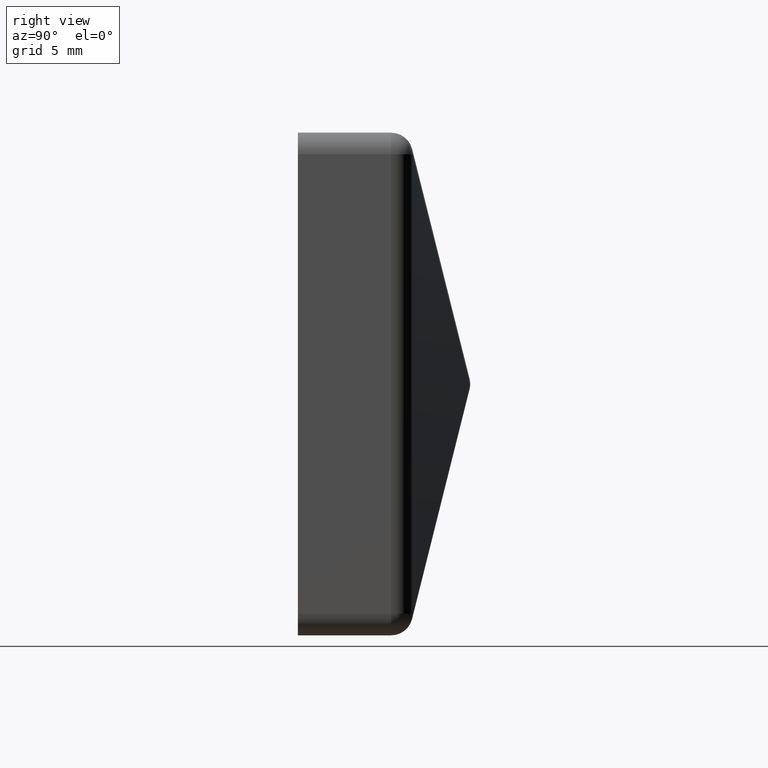
[diagram: clean part render]
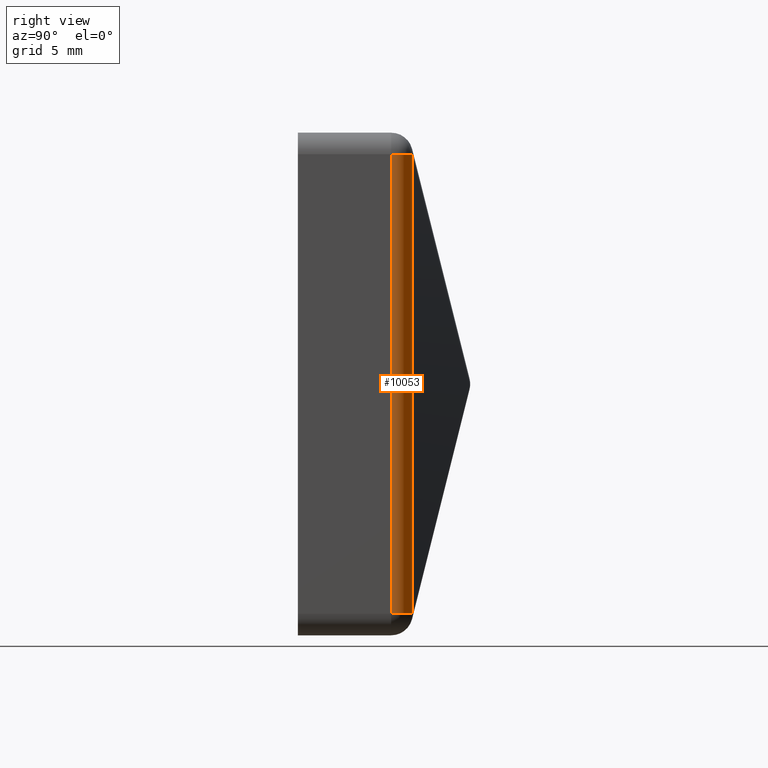
[diagram: same view with one face highlighted and labeled with its STEP entity id]
A machine part, right view. The second image highlights one B-rep face of the part: STEP entity #10053.
In plain terms, the highlighted cylindrical surface (edge-blend (fillet) strip) has radius 1.5 mm, axis along (-0, -0, 1).
Its self-contained STEP definition (entity closure, byte-faithful):
#84 = VERTEX_POINT ( 'NONE', #3073 ) ;
#327 = CIRCLE ( 'NONE', #10039, 1.500000000000001332 ) ;
#1228 = VERTEX_POINT ( 'NONE', #6089 ) ;
#1542 = DIRECTION ( 'NONE',  ( -0.000000000000000000, -0.000000000000000000, 1.000000000000000000 ) ) ;
#1738 = FACE_OUTER_BOUND ( 'NONE', #11471, .T. ) ;
#2063 = EDGE_CURVE ( 'NONE', #6640, #2240, #5819, .T. ) ;
#2240 = VERTEX_POINT ( 'NONE', #5716 ) ;
#3073 = CARTESIAN_POINT ( 'NONE',  ( 16.36380343755451605, 7.955213750217999369, 16.00000000000001776 ) ) ;
#4214 = EDGE_CURVE ( 'NONE', #1228, #84, #6228, .T. ) ;
#4231 = AXIS2_PLACEMENT_3D ( 'NONE', #8772, #10497, #11408 ) ;
#4553 = CYLINDRICAL_SURFACE ( 'NONE', #6202, 1.500000000000001332 ) ;
#5036 = DIRECTION ( 'NONE',  ( 1.000000000000000000, 0.000000000000000000, 0.000000000000000000 ) ) ;
#5086 = VECTOR ( 'NONE', #1542, 1000.000000000000000 ) ;
#5096 = ORIENTED_EDGE ( 'NONE', *, *, #8383, .T. ) ;
#5152 = DIRECTION ( 'NONE',  ( -0.000000000000000000, -0.000000000000000000, 1.000000000000000000 ) ) ;
#5334 = ORIENTED_EDGE ( 'NONE', *, *, #2063, .F. ) ;
#5410 = CARTESIAN_POINT ( 'NONE',  ( 17.50000000000001776, 6.500000000000000000, -17.49999999999999289 ) ) ;
#5716 = CARTESIAN_POINT ( 'NONE',  ( 17.50000000000001776, 6.500000000000000000, 16.00000000000001066 ) ) ;
#5819 = LINE ( 'NONE', #5410, #11376 ) ;
#5820 = CIRCLE ( 'NONE', #4231, 1.500000000000001332 ) ;
#6089 = CARTESIAN_POINT ( 'NONE',  ( 16.36380343755451605, 7.955213750217999369, -16.00000000000002487 ) ) ;
#6202 = AXIS2_PLACEMENT_3D ( 'NONE', #9614, #5152, #5036 ) ;
#6228 = LINE ( 'NONE', #11440, #5086 ) ;
#6640 = VERTEX_POINT ( 'NONE', #10415 ) ;
#8383 = EDGE_CURVE ( 'NONE', #6640, #1228, #5820, .T. ) ;
#8593 = ORIENTED_EDGE ( 'NONE', *, *, #10571, .T. ) ;
#8772 = CARTESIAN_POINT ( 'NONE',  ( 16.00000000000001776, 6.500000000000000000, -16.00000000000002132 ) ) ;
#9343 = ORIENTED_EDGE ( 'NONE', *, *, #4214, .T. ) ;
#9614 = CARTESIAN_POINT ( 'NONE',  ( 16.00000000000001776, 6.500000000000000000, -17.49999999999999289 ) ) ;
#9627 = DIRECTION ( 'NONE',  ( -0.000000000000000000, -0.000000000000000000, 1.000000000000000000 ) ) ;
#10005 = CARTESIAN_POINT ( 'NONE',  ( 16.00000000000001776, 6.500000000000000000, 16.00000000000001066 ) ) ;
#10039 = AXIS2_PLACEMENT_3D ( 'NONE', #10005, #10974, #10041 ) ;
#10041 = DIRECTION ( 'NONE',  ( 1.000000000000000000, 0.000000000000000000, 0.000000000000000000 ) ) ;
#10053 = ADVANCED_FACE ( 'NONE', ( #1738 ), #4553, .T. ) ;
#10415 = CARTESIAN_POINT ( 'NONE',  ( 17.50000000000001776, 6.500000000000000000, -15.99999999999998934 ) ) ;
#10497 = DIRECTION ( 'NONE',  ( -0.000000000000000000, -0.000000000000000000, 1.000000000000000000 ) ) ;
#10571 = EDGE_CURVE ( 'NONE', #84, #2240, #327, .T. ) ;
#10974 = DIRECTION ( 'NONE',  ( 0.000000000000000000, 0.000000000000000000, -1.000000000000000000 ) ) ;
#11376 = VECTOR ( 'NONE', #9627, 1000.000000000000000 ) ;
#11408 = DIRECTION ( 'NONE',  ( 1.000000000000000000, 0.000000000000000000, 0.000000000000000000 ) ) ;
#11440 = CARTESIAN_POINT ( 'NONE',  ( 16.36380343755451605, 7.955213750217999369, -17.49999999999999289 ) ) ;
#11471 = EDGE_LOOP ( 'NONE', ( #9343, #8593, #5334, #5096 ) ) ;